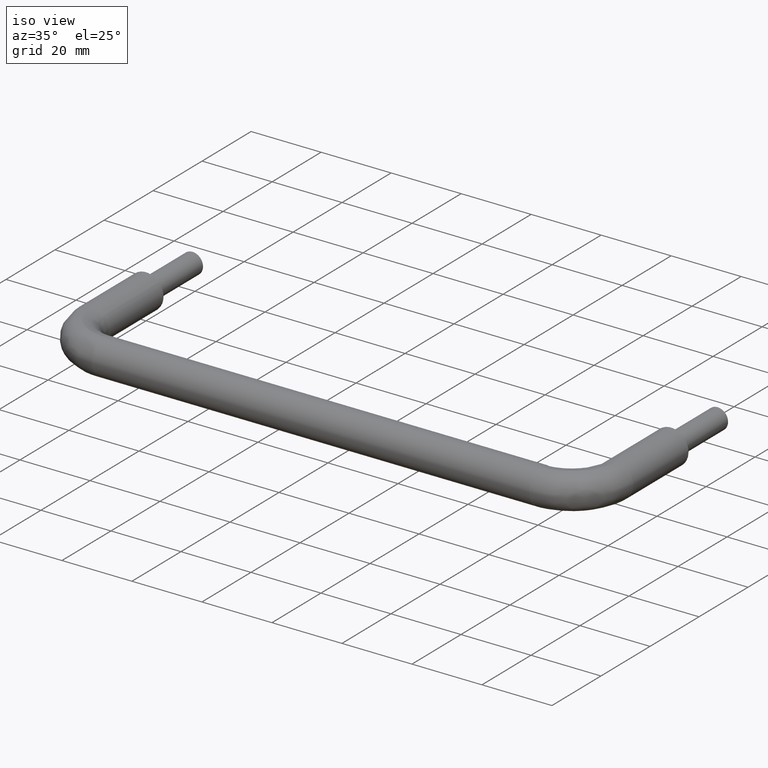
[diagram: clean part render]
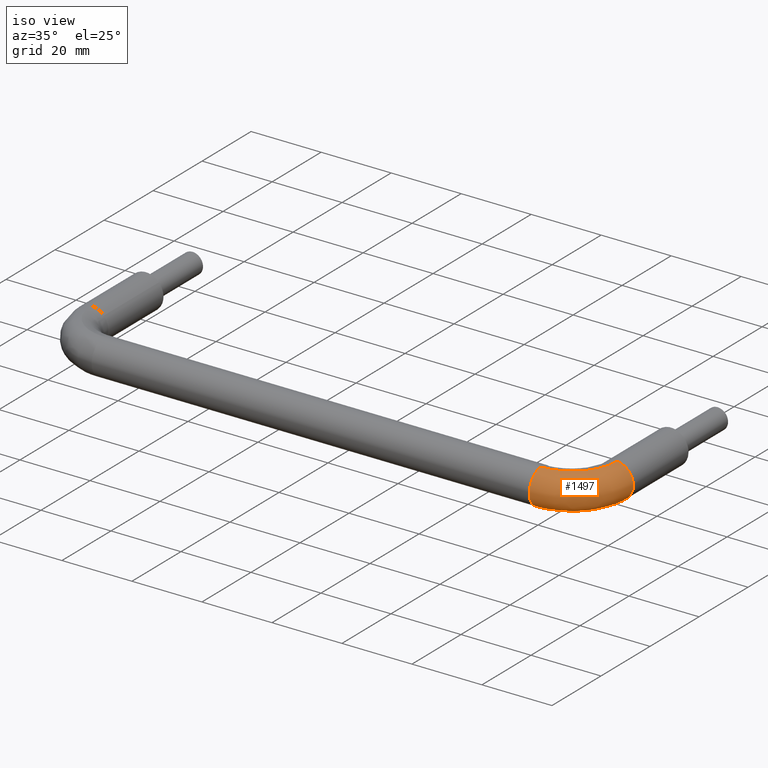
[diagram: same view with one face highlighted and labeled with its STEP entity id]
A machine part, iso view. The second image highlights one B-rep face of the part: STEP entity #1497.
In plain terms, the highlighted face is a freeform B-spline surface patch.
Its self-contained STEP definition (entity closure, byte-faithful):
#730=CARTESIAN_POINT('',(153.294847003536010,-22.500000000000320,-3.760848737092333));
#731=VERTEX_POINT('',#730);
#732=CARTESIAN_POINT('',(149.937169799360700,-22.500000000965859,-4.999605221003716));
#733=VERTEX_POINT('',#732);
#734=CARTESIAN_POINT('',(153.294847003536010,-22.500000000000298,-3.760848737092427));
#735=CARTESIAN_POINT('',(151.880438244291380,-22.500000000000295,-4.999999999999999));
#736=CARTESIAN_POINT('',(150.0,-22.500000000000298,-5.0));
#737=CARTESIAN_POINT('',(149.968583658817830,-22.500000000000295,-4.999999999999999));
#738=CARTESIAN_POINT('',(149.937169799360760,-22.500000000965859,-4.999605221003716));
#746=(BOUNDED_CURVE()B_SPLINE_CURVE(2,(#734,#735,#736,#737,#738),.UNSPECIFIED.,.F.,.U.)B_SPLINE_CURVE_WITH_KNOTS((3,2,3),(0.134954754507824,0.250000000000000,0.252215704164280),.UNSPECIFIED.)CURVE()GEOMETRIC_REPRESENTATION_ITEM()RATIONAL_B_SPLINE_CURVE((0.854482186737985,0.865216110954451,1.0,0.997404141101543,0.994854295446055))REPRESENTATION_ITEM(''));
#747=EDGE_CURVE('',#731,#733,#746,.T.);
#848=CARTESIAN_POINT('',(155.0,-22.500000000000298,0.0));
#849=VERTEX_POINT('',#848);
#850=CARTESIAN_POINT('',(155.0,-22.500000000000298,0.0));
#851=CARTESIAN_POINT('',(154.999999999999940,-22.500000000000302,-2.266978966272200));
#852=CARTESIAN_POINT('',(153.294847003535980,-22.500000000000295,-3.760848737092426));
#860=(BOUNDED_CURVE()B_SPLINE_CURVE(2,(#850,#851,#852),.UNSPECIFIED.,.F.,.U.)B_SPLINE_CURVE_WITH_KNOTS((3,3),(0.0,0.134954754507824),.UNSPECIFIED.)CURVE()GEOMETRIC_REPRESENTATION_ITEM()RATIONAL_B_SPLINE_CURVE((1.0,0.841890670232096,0.854482186737985))REPRESENTATION_ITEM(''));
#861=EDGE_CURVE('',#849,#731,#860,.T.);
#895=CARTESIAN_POINT('',(150.348666260412900,-22.500000000475019,4.987828369024909));
#896=VERTEX_POINT('',#895);
#912=CARTESIAN_POINT('',(150.348666260412870,-22.500000000475019,4.987828369024910));
#913=CARTESIAN_POINT('',(155.0,-22.500000000000306,4.662684231580748));
#914=CARTESIAN_POINT('',(155.0,-22.500000000000298,0.0));
#922=(BOUNDED_CURVE()B_SPLINE_CURVE(2,(#912,#913,#914),.UNSPECIFIED.,.F.,.U.)B_SPLINE_CURVE_WITH_KNOTS((3,3),(0.762166313639729,1.0),.UNSPECIFIED.)CURVE()GEOMETRIC_REPRESENTATION_ITEM()RATIONAL_B_SPLINE_CURVE((0.972879876017216,0.721360504238684,1.0))REPRESENTATION_ITEM(''));
#923=EDGE_CURVE('',#896,#849,#922,.T.);
#956=CARTESIAN_POINT('',(137.500000000045110,-35.348666258604020,4.987828369151366));
#957=VERTEX_POINT('',#956);
#1051=CARTESIAN_POINT('',(137.500000001110890,-34.937169799106677,-4.999605221000522));
#1052=VERTEX_POINT('',#1051);
#1066=CARTESIAN_POINT('',(137.500000000000000,-40.0,0.0));
#1067=VERTEX_POINT('',#1066);
#1068=CARTESIAN_POINT('',(137.500000000000000,-40.0,0.0));
#1069=CARTESIAN_POINT('',(137.500000000000000,-39.999999999999993,-5.000000000000001));
#1070=CARTESIAN_POINT('',(137.500000000000000,-35.0,-5.0));
#1071=CARTESIAN_POINT('',(137.499999999999940,-34.968583658563681,-5.0));
#1072=CARTESIAN_POINT('',(137.500000001110830,-34.937169799106684,-4.999605221000523));
#1080=(BOUNDED_CURVE()B_SPLINE_CURVE(2,(#1068,#1069,#1070,#1071,#1072),.UNSPECIFIED.,.F.,.U.)B_SPLINE_CURVE_WITH_KNOTS((3,2,3),(0.0,0.250000000000000,0.252215704182161),.UNSPECIFIED.)CURVE()GEOMETRIC_REPRESENTATION_ITEM()RATIONAL_B_SPLINE_CURVE((1.0,0.707106781186548,1.0,0.997404141080594,0.994854295404900))REPRESENTATION_ITEM(''));
#1081=EDGE_CURVE('',#1067,#1052,#1080,.T.);
#1083=CARTESIAN_POINT('',(137.500000000045130,-35.348666258604020,4.987828369151366));
#1084=CARTESIAN_POINT('',(137.500000000000000,-40.0,4.662684234971207));
#1085=CARTESIAN_POINT('',(137.500000000000000,-40.0,0.0));
#1093=(BOUNDED_CURVE()B_SPLINE_CURVE(2,(#1083,#1084,#1085),.UNSPECIFIED.,.F.,.U.)B_SPLINE_CURVE_WITH_KNOTS((3,3),(0.762166313514976,1.0),.UNSPECIFIED.)CURVE()GEOMETRIC_REPRESENTATION_ITEM()RATIONAL_B_SPLINE_CURVE((0.972879876281078,0.721360504092528,1.0))REPRESENTATION_ITEM(''));
#1094=EDGE_CURVE('',#957,#1067,#1093,.T.);
#1426=CARTESIAN_POINT('',(137.500000001110830,-34.937169799106684,-4.999605221000522));
#1427=CARTESIAN_POINT('',(149.937169798652120,-34.937169798361822,-4.999605221019078));
#1428=CARTESIAN_POINT('',(149.937169799360650,-22.500000000965855,-4.999605221003716));
#1436=(BOUNDED_CURVE()B_SPLINE_CURVE(2,(#1426,#1427,#1428),.UNSPECIFIED.,.F.,.U.)B_SPLINE_CURVE_WITH_KNOTS((3,3),(-1.734750791472784,-0.265249208502937),.UNSPECIFIED.)CURVE()GEOMETRIC_REPRESENTATION_ITEM()RATIONAL_B_SPLINE_CURVE((0.889029723510660,0.628638946278783,0.889029723519264))REPRESENTATION_ITEM(''));
#1437=EDGE_CURVE('',#1052,#733,#1436,.T.);
#1443=CARTESIAN_POINT('',(137.500000000045050,-35.348666258604013,4.987828369151366));
#1444=CARTESIAN_POINT('',(150.348666256927740,-35.348666257787301,4.987828369202160));
#1445=CARTESIAN_POINT('',(150.348666260412870,-22.500000000475019,4.987828369024909));
#1453=(BOUNDED_CURVE()B_SPLINE_CURVE(2,(#1443,#1444,#1445),.UNSPECIFIED.,.F.,.U.)B_SPLINE_CURVE_WITH_KNOTS((3,3),(-1.734750791651106,-0.265249208418381),.UNSPECIFIED.)CURVE()GEOMETRIC_REPRESENTATION_ITEM()RATIONAL_B_SPLINE_CURVE((0.869031711872733,0.614498216547713,0.869031711848661))REPRESENTATION_ITEM(''));
#1454=EDGE_CURVE('',#957,#896,#1453,.T.);
#1459=CARTESIAN_POINT('',(136.640022912754660,-34.837233356107603,-4.998725528057694));
#1460=CARTESIAN_POINT('',(150.826084951453370,-35.826084580639524,-4.998725528057695));
#1461=CARTESIAN_POINT('',(149.837233332177420,-21.640022569456750,-4.998725528057693));
#1462=CARTESIAN_POINT('',(136.637596190251830,-34.872047122952310,-4.999164095394840));
#1463=CARTESIAN_POINT('',(150.863689104755930,-35.863688732895717,-4.999164095394842));
#1464=CARTESIAN_POINT('',(149.872047098954650,-21.637595845985246,-4.999164095394839));
#1465=CARTESIAN_POINT('',(136.287497276693670,-39.894566976500428,-5.062435420435841));
#1466=CARTESIAN_POINT('',(156.288773019992900,-41.288772497173312,-5.062435420435840));
#1467=CARTESIAN_POINT('',(154.894566942760860,-21.287496792669529,-5.062435420435842));
#1468=CARTESIAN_POINT('',(136.283128246996140,-39.957245087019601,-0.062830199416764));
#1469=CARTESIAN_POINT('',(156.356474894575830,-41.356474369872330,-0.062830199416764));
#1470=CARTESIAN_POINT('',(154.957245053158350,-21.283127761227895,-0.062830199416764));
#1471=CARTESIAN_POINT('',(136.279002338772220,-40.016435376294858,4.658564189198486));
#1472=CARTESIAN_POINT('',(156.420409392725840,-41.420408866243335,4.658564189198486));
#1473=CARTESIAN_POINT('',(155.016435342318860,-21.279001851356959,4.658564189198486));
#1474=CARTESIAN_POINT('',(136.609012546859080,-35.282108139617776,4.990312893206654));
#1475=CARTESIAN_POINT('',(151.306617254498460,-36.306616870313306,4.990312893206654));
#1476=CARTESIAN_POINT('',(150.282108114824640,-21.609012191182011,4.990312893206655));
#1477=CARTESIAN_POINT('',(136.611470664710740,-35.246843975022657,4.992783960439128));
#1478=CARTESIAN_POINT('',(151.268526603250140,-36.268526220124883,4.992783960439128));
#1479=CARTESIAN_POINT('',(150.246843950297920,-21.611470310014926,4.992783960439129));
#1487=(BOUNDED_SURFACE()B_SPLINE_SURFACE(2,2,((#1459,#1462,#1465,#1468,#1471,#1474,#1477),(#1460,#1463,#1466,#1469,#1472,#1475,#1478),(#1461,#1464,#1467,#1470,#1473,#1476,#1479)),.UNSPECIFIED.,.F.,.F.,.U.)B_SPLINE_SURFACE_WITH_KNOTS((3,3),(3,1,2,1,3),(0.0,31.890824110817530),(0.0,0.082495069639237,8.366766317101135,16.319666714664560,16.401494886174898),.UNSPECIFIED.)GEOMETRIC_REPRESENTATION_ITEM()RATIONAL_B_SPLINE_SURFACE(((0.921687377380175,0.919014736310554,0.647951709431553,0.916342095240933,0.658687324863928,0.898168665976822,0.900607618342872),(0.604834276383760,0.603080422564071,0.425202094466791,0.601326568744382,0.432247073437895,0.589400710575842,0.591001212031821),(0.921687389064801,0.919014747961298,0.647951717645915,0.916342106857795,0.658687333214390,0.898168677363292,0.900607629760262)))REPRESENTATION_ITEM('')SURFACE());
#1488=ORIENTED_EDGE('',*,*,#923,.F.);
#1489=ORIENTED_EDGE('',*,*,#1454,.F.);
#1490=ORIENTED_EDGE('',*,*,#1094,.T.);
#1491=ORIENTED_EDGE('',*,*,#1081,.T.);
#1492=ORIENTED_EDGE('',*,*,#1437,.T.);
#1493=ORIENTED_EDGE('',*,*,#747,.F.);
#1494=ORIENTED_EDGE('',*,*,#861,.F.);
#1495=EDGE_LOOP('',(#1488,#1489,#1490,#1491,#1492,#1493,#1494));
#1496=FACE_OUTER_BOUND('',#1495,.T.);
#1497=ADVANCED_FACE('',(#1496),#1487,.T.);